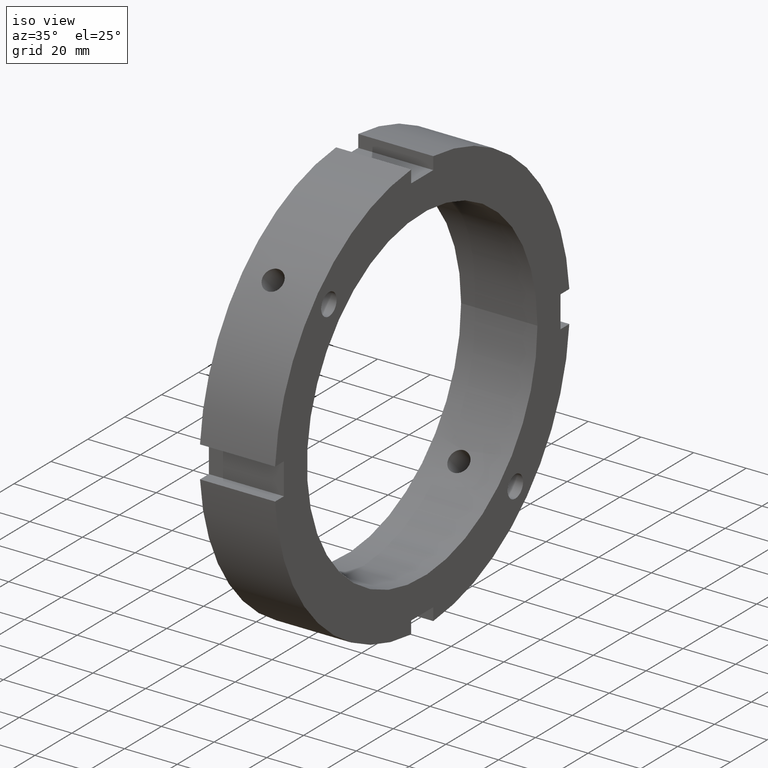
[diagram: clean part render]
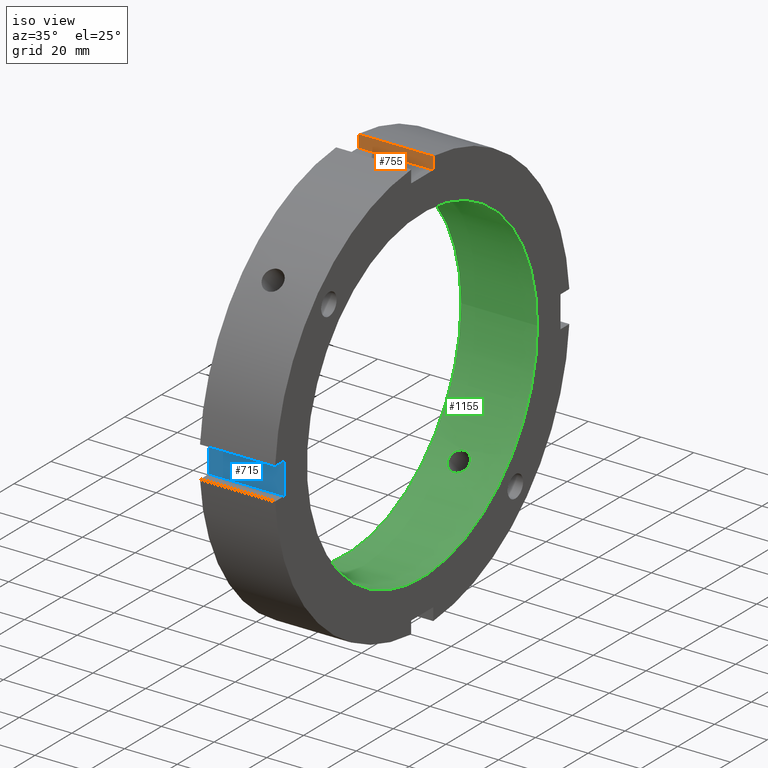
[diagram: same view with three faces highlighted in distinct colors, each labeled with its STEP entity id]
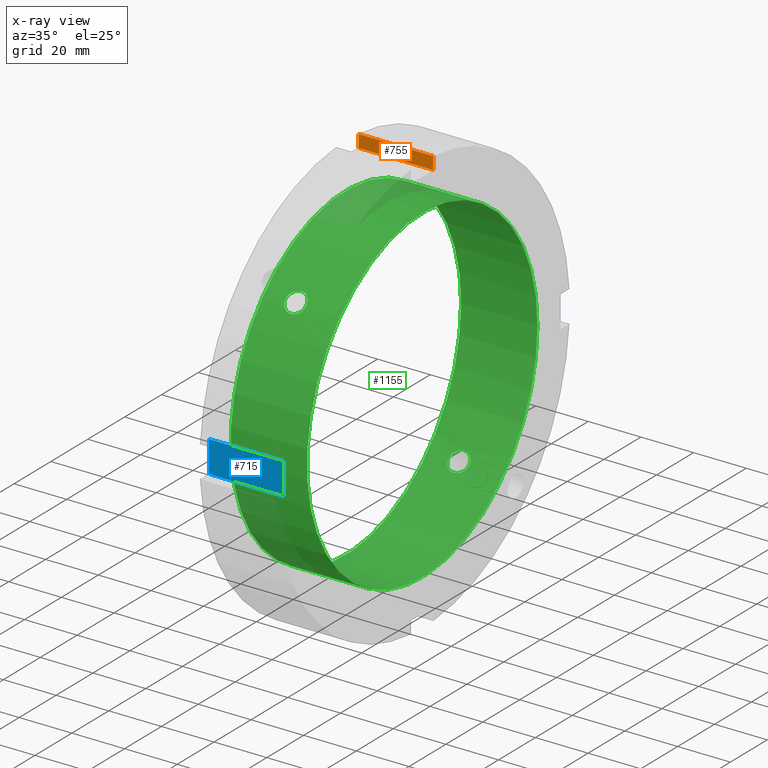
[diagram: x-ray of the same camera — body ghosted, the three highlighted faces saturated]
A machine part, iso view with three faces highlighted in distinct colors.
The next image is the same camera in x-ray (body ghosted, the three faces saturated) — at least one of them is partly hidden behind the body in this view.
Their STEP definitions:

[orange] entity #755 — the highlighted planar face has unit normal (0, 1, 0).
#716=CARTESIAN_POINT('',(28.999999999999986,6.000000000000001,75.0));
#717=DIRECTION('',(0.0,1.0,0.0));
#718=DIRECTION('',(-1.0,0.0,0.0));
#719=AXIS2_PLACEMENT_3D('',#716,#717,#718);
#720=PLANE('',#719);
#721=CARTESIAN_POINT('',(0.49999999999998,6.000000000000001,75.0));
#722=VERTEX_POINT('',#721);
#723=CARTESIAN_POINT('',(0.499999999999976,6.000000000000001,79.774682700716525));
#724=VERTEX_POINT('',#723);
#725=CARTESIAN_POINT('',(0.499999999999978,6.000000000000004,75.0));
#726=DIRECTION('',(0.0,0.0,1.0));
#727=VECTOR('',#726,4.774682700716525);
#728=LINE('',#725,#727);
#729=EDGE_CURVE('',#722,#724,#728,.T.);
#730=ORIENTED_EDGE('',*,*,#729,.F.);
#731=CARTESIAN_POINT('',(28.999999999999986,6.000000000000001,75.0));
#732=VERTEX_POINT('',#731);
#733=CARTESIAN_POINT('',(28.999999999999986,6.000000000000001,75.0));
#734=DIRECTION('',(-1.0,0.0,0.0));
#735=VECTOR('',#734,28.500000000000007);
#736=LINE('',#733,#735);
#737=EDGE_CURVE('',#732,#722,#736,.T.);
#738=ORIENTED_EDGE('',*,*,#737,.F.);
#739=CARTESIAN_POINT('',(28.999999999999986,6.000000000000001,79.774682700716525));
#740=VERTEX_POINT('',#739);
#741=CARTESIAN_POINT('',(28.999999999999986,5.999999999999995,79.774682700716525));
#742=DIRECTION('',(0.0,0.0,-1.0));
#743=VECTOR('',#742,4.774682700716525);
#744=LINE('',#741,#743);
#745=EDGE_CURVE('',#740,#732,#744,.T.);
#746=ORIENTED_EDGE('',*,*,#745,.F.);
#747=CARTESIAN_POINT('',(0.499999999999975,6.000000000000001,79.774682700716525));
#748=DIRECTION('',(1.0,0.0,0.0));
#749=VECTOR('',#748,28.500000000000011);
#750=LINE('',#747,#749);
#751=EDGE_CURVE('',#724,#740,#750,.T.);
#752=ORIENTED_EDGE('',*,*,#751,.F.);
#753=EDGE_LOOP('',(#730,#738,#746,#752));
#754=FACE_OUTER_BOUND('',#753,.T.);
#755=ADVANCED_FACE('',(#754),#720,.F.);

[blue] entity #715 — the highlighted planar face has unit normal (0, 1, 0).
#619=CARTESIAN_POINT('',(0.49999999999998,-75.0,6.000000000000005));
#620=VERTEX_POINT('',#619);
#629=CARTESIAN_POINT('',(28.999999999999986,-75.0,6.000000000000005));
#630=VERTEX_POINT('',#629);
#631=CARTESIAN_POINT('',(28.999999999999986,-75.0,6.000000000000005));
#632=DIRECTION('',(-1.0,0.0,0.0));
#633=VECTOR('',#632,28.500000000000007);
#634=LINE('',#631,#633);
#635=EDGE_CURVE('',#630,#620,#634,.T.);
#661=CARTESIAN_POINT('',(0.49999999999998,-75.0,-5.999999999999988));
#662=VERTEX_POINT('',#661);
#677=CARTESIAN_POINT('',(28.999999999999986,-75.0,-5.999999999999988));
#678=VERTEX_POINT('',#677);
#685=CARTESIAN_POINT('',(28.999999999999986,-75.0,-5.999999999999988));
#686=DIRECTION('',(-1.0,0.0,0.0));
#687=VECTOR('',#686,28.500000000000007);
#688=LINE('',#685,#687);
#689=EDGE_CURVE('',#678,#662,#688,.T.);
#694=CARTESIAN_POINT('',(28.999999999999986,-75.0,-5.999999999999988));
#695=DIRECTION('',(0.0,1.0,0.0));
#696=DIRECTION('',(0.0,0.0,1.0));
#697=AXIS2_PLACEMENT_3D('',#694,#695,#696);
#698=PLANE('',#697);
#699=CARTESIAN_POINT('',(0.499999999999978,-75.0,-5.999999999999988));
#700=DIRECTION('',(0.0,0.0,1.0));
#701=VECTOR('',#700,11.999999999999993);
#702=LINE('',#699,#701);
#703=EDGE_CURVE('',#662,#620,#702,.T.);
#704=ORIENTED_EDGE('',*,*,#703,.F.);
#705=ORIENTED_EDGE('',*,*,#689,.F.);
#706=CARTESIAN_POINT('',(28.999999999999986,-75.0,6.000000000000004));
#707=DIRECTION('',(0.0,0.0,-1.0));
#708=VECTOR('',#707,11.999999999999993);
#709=LINE('',#706,#708);
#710=EDGE_CURVE('',#630,#678,#709,.T.);
#711=ORIENTED_EDGE('',*,*,#710,.F.);
#712=ORIENTED_EDGE('',*,*,#635,.T.);
#713=EDGE_LOOP('',(#704,#705,#711,#712));
#714=FACE_OUTER_BOUND('',#713,.T.);
#715=ADVANCED_FACE('',(#714),#698,.F.);

[green] entity #1155 — the highlighted cylindrical surface (bore or boss wall) has radius 62.5 mm, axis along (1, 0, 0).
#248=CARTESIAN_POINT('',(11.999999999999989,-46.898896230991113,41.312752659617416));
#249=VERTEX_POINT('',#248);
#250=CARTESIAN_POINT('',(11.999999999999989,-46.898896230991113,41.312752659617438));
#251=CARTESIAN_POINT('',(12.496112789596733,-46.898896230991113,41.312752659617438));
#252=CARTESIAN_POINT('',(13.025203465724886,-46.833384731907515,41.387496260169542));
#253=CARTESIAN_POINT('',(13.998362675495358,-46.564985700225293,41.689241763311514));
#254=CARTESIAN_POINT('',(14.442442436615238,-46.36186265687185,41.915997876048721));
#255=CARTESIAN_POINT('',(15.143700945424058,-45.888179939864798,42.434044452928617));
#256=CARTESIAN_POINT('',(15.447671556406753,-45.585974299614165,42.759862553654656));
#257=CARTESIAN_POINT('',(15.850824740134094,-44.914496295879331,43.464639891962413));
#258=CARTESIAN_POINT('',(15.949999999999989,-44.54497835248732,43.843369295831081));
#259=CARTESIAN_POINT('',(15.949999999999989,-43.843369295831067,44.544978352487341));
#260=CARTESIAN_POINT('',(15.850824740134101,-43.464639891962392,44.914496295879346));
#261=CARTESIAN_POINT('',(15.447671556406776,-42.759862553654642,45.585974299614179));
#262=CARTESIAN_POINT('',(15.143700945424055,-42.434044452928596,45.888179939864798));
#263=CARTESIAN_POINT('',(14.44244243661524,-41.915997876048692,46.361862656871864));
#264=CARTESIAN_POINT('',(13.998362675495377,-41.689241763311458,46.564985700225321));
#265=CARTESIAN_POINT('',(13.025203465724909,-41.387496260169492,46.833384731907557));
#266=CARTESIAN_POINT('',(12.496112789596737,-41.312752659617374,46.898896230991141));
#267=CARTESIAN_POINT('',(11.503887210403242,-41.312752659617374,46.898896230991141));
#268=CARTESIAN_POINT('',(10.974796534275072,-41.387496260169492,46.833384731907557));
#269=CARTESIAN_POINT('',(10.0016373245046,-41.689241763311458,46.564985700225321));
#270=CARTESIAN_POINT('',(9.557557563384739,-41.915997876048692,46.361862656871864));
#271=CARTESIAN_POINT('',(8.856299054575922,-42.434044452928596,45.888179939864798));
#272=CARTESIAN_POINT('',(8.552328443593199,-42.759862553654642,45.585974299614179));
#273=CARTESIAN_POINT('',(8.149175259865874,-43.464639891962392,44.914496295879346));
#274=CARTESIAN_POINT('',(8.049999999999987,-43.843369295831067,44.544978352487341));
#275=CARTESIAN_POINT('',(8.04999999999999,-44.54497835248732,43.843369295831081));
#276=CARTESIAN_POINT('',(8.149175259865887,-44.914496295879331,43.464639891962413));
#277=CARTESIAN_POINT('',(8.552328443593227,-45.585974299614165,42.759862553654656));
#278=CARTESIAN_POINT('',(8.856299054575921,-45.888179939864798,42.434044452928617));
#279=CARTESIAN_POINT('',(9.557557563384743,-46.36186265687185,41.915997876048721));
#280=CARTESIAN_POINT('',(10.001637324504621,-46.564985700225293,41.689241763311514));
#281=CARTESIAN_POINT('',(10.974796534275091,-46.833384731907515,41.387496260169542));
#282=CARTESIAN_POINT('',(11.503887210403242,-46.898896230991113,41.312752659617438));
#283=CARTESIAN_POINT('',(11.999999999999989,-46.898896230991113,41.312752659617438));
#284=B_SPLINE_CURVE_WITH_KNOTS('',3,(#250,#251,#252,#253,#254,#255,#256,#257,#258,#259,#260,#261,#262,#263,#264,#265,#266,#267,#268,#269,#270,#271,#272,#273,#274,#275,#276,#277,#278,#279,#280,#281,#282,#283),.UNSPECIFIED.,.T.,.U.,(4,2,2,2,2,2,2,2,2,2,2,2,2,2,2,2,4),(0.0,0.148833836879023,0.297667673758047,0.446501430269108,0.595335186780169,0.74416894329123,0.893002699802291,1.041836536681315,1.190670373560339,1.339504210439363,1.488338047318387,1.637171803829448,1.786005560340509,1.934839316851569,2.08367307336263,2.232506910241654,2.381340747120677),.UNSPECIFIED.);
#285=EDGE_CURVE('',#249,#249,#284,.T.);
#470=CARTESIAN_POINT('',(11.999999999999989,41.312752659617409,-46.89889623099112));
#471=VERTEX_POINT('',#470);
#472=CARTESIAN_POINT('',(11.999999999999989,41.312752659617416,-46.89889623099112));
#473=CARTESIAN_POINT('',(11.503887210403242,41.312752659617416,-46.89889623099112));
#474=CARTESIAN_POINT('',(10.974796534275077,41.387496260169527,-46.833384731907522));
#475=CARTESIAN_POINT('',(10.001637324504607,41.689241763311493,-46.564985700225286));
#476=CARTESIAN_POINT('',(9.557557563384741,41.915997876048735,-46.361862656871828));
#477=CARTESIAN_POINT('',(8.856299054575924,42.434044452928639,-45.888179939864756));
#478=CARTESIAN_POINT('',(8.552328443593193,42.759862553654671,-45.585974299614136));
#479=CARTESIAN_POINT('',(8.149175259865869,43.46463989196242,-44.914496295879303));
#480=CARTESIAN_POINT('',(8.049999999999987,43.843369295831103,-44.544978352487306));
#481=CARTESIAN_POINT('',(8.04999999999999,44.544978352487362,-43.843369295831053));
#482=CARTESIAN_POINT('',(8.149175259865885,44.914496295879346,-43.464639891962371));
#483=CARTESIAN_POINT('',(8.552328443593222,45.585974299614172,-42.759862553654614));
#484=CARTESIAN_POINT('',(8.856299054575924,45.888179939864813,-42.434044452928589));
#485=CARTESIAN_POINT('',(9.557557563384743,46.361862656871871,-41.915997876048685));
#486=CARTESIAN_POINT('',(10.001637324504621,46.564985700225321,-41.689241763311465));
#487=CARTESIAN_POINT('',(10.974796534275091,46.833384731907543,-41.387496260169499));
#488=CARTESIAN_POINT('',(11.503887210403242,46.898896230991141,-41.312752659617367));
#489=CARTESIAN_POINT('',(12.496112789596733,46.898896230991141,-41.312752659617367));
#490=CARTESIAN_POINT('',(13.025203465724893,46.833384731907557,-41.387496260169499));
#491=CARTESIAN_POINT('',(13.998362675495365,46.564985700225336,-41.689241763311465));
#492=CARTESIAN_POINT('',(14.442442436615238,46.361862656871864,-41.915997876048685));
#493=CARTESIAN_POINT('',(15.143700945424056,45.888179939864813,-42.434044452928589));
#494=CARTESIAN_POINT('',(15.447671556406755,45.585974299614172,-42.759862553654614));
#495=CARTESIAN_POINT('',(15.850824740134094,44.914496295879346,-43.464639891962371));
#496=CARTESIAN_POINT('',(15.949999999999989,44.544978352487362,-43.843369295831053));
#497=CARTESIAN_POINT('',(15.949999999999989,43.843369295831103,-44.544978352487306));
#498=CARTESIAN_POINT('',(15.850824740134112,43.46463989196242,-44.914496295879303));
#499=CARTESIAN_POINT('',(15.447671556406785,42.759862553654671,-45.585974299614136));
#500=CARTESIAN_POINT('',(15.143700945424055,42.434044452928639,-45.888179939864756));
#501=CARTESIAN_POINT('',(14.442442436615238,41.915997876048735,-46.361862656871828));
#502=CARTESIAN_POINT('',(13.99836267549537,41.689241763311493,-46.564985700225286));
#503=CARTESIAN_POINT('',(13.025203465724907,41.387496260169527,-46.833384731907522));
#504=CARTESIAN_POINT('',(12.496112789596737,41.312752659617416,-46.898896230991127));
#505=CARTESIAN_POINT('',(11.999999999999989,41.312752659617416,-46.898896230991127));
#506=B_SPLINE_CURVE_WITH_KNOTS('',3,(#472,#473,#474,#475,#476,#477,#478,#479,#480,#481,#482,#483,#484,#485,#486,#487,#488,#489,#490,#491,#492,#493,#494,#495,#496,#497,#498,#499,#500,#501,#502,#503,#504,#505),.UNSPECIFIED.,.T.,.U.,(4,2,2,2,2,2,2,2,2,2,2,2,2,2,2,2,4),(0.0,0.148833836879024,0.297667673758048,0.446501430269109,0.59533518678017,0.74416894329123,0.89300269980229,1.041836536681314,1.190670373560338,1.339504210439362,1.488338047318386,1.637171803829446,1.786005560340506,1.934839316851567,2.083673073362628,2.232506910241652,2.381340747120676),.UNSPECIFIED.);
#507=EDGE_CURVE('',#471,#471,#506,.T.);
#986=CARTESIAN_POINT('',(28.999999999999986,62.5,0.0));
#987=VERTEX_POINT('',#986);
#988=CARTESIAN_POINT('',(28.999999999999986,0.0,0.0));
#989=DIRECTION('',(1.0,0.0,0.0));
#990=DIRECTION('',(0.0,1.0,0.0));
#991=AXIS2_PLACEMENT_3D('',#988,#989,#990);
#992=CIRCLE('',#991,62.5);
#993=EDGE_CURVE('',#987,#987,#992,.T.);
#1079=CARTESIAN_POINT('',(-1.824145E-014,62.5,0.0));
#1080=VERTEX_POINT('',#1079);
#1081=CARTESIAN_POINT('',(-1.824062E-014,0.0,0.0));
#1082=DIRECTION('',(1.0,0.0,0.0));
#1083=DIRECTION('',(0.0,1.0,0.0));
#1084=AXIS2_PLACEMENT_3D('',#1081,#1082,#1083);
#1085=CIRCLE('',#1084,62.5);
#1086=EDGE_CURVE('',#1080,#1080,#1085,.T.);
#1138=CARTESIAN_POINT('',(14.499999999999984,0.0,0.0));
#1139=DIRECTION('',(1.0,0.0,0.0));
#1140=DIRECTION('',(0.0,1.0,0.0));
#1141=AXIS2_PLACEMENT_3D('',#1138,#1139,#1140);
#1142=CYLINDRICAL_SURFACE('',#1141,62.5);
#1143=ORIENTED_EDGE('',*,*,#1086,.F.);
#1144=EDGE_LOOP('',(#1143));
#1145=FACE_OUTER_BOUND('',#1144,.T.);
#1146=ORIENTED_EDGE('',*,*,#285,.T.);
#1147=EDGE_LOOP('',(#1146));
#1148=FACE_BOUND('',#1147,.T.);
#1149=ORIENTED_EDGE('',*,*,#507,.T.);
#1150=EDGE_LOOP('',(#1149));
#1151=FACE_BOUND('',#1150,.T.);
#1152=ORIENTED_EDGE('',*,*,#993,.T.);
#1153=EDGE_LOOP('',(#1152));
#1154=FACE_BOUND('',#1153,.T.);
#1155=ADVANCED_FACE('',(#1145,#1148,#1151,#1154),#1142,.F.);